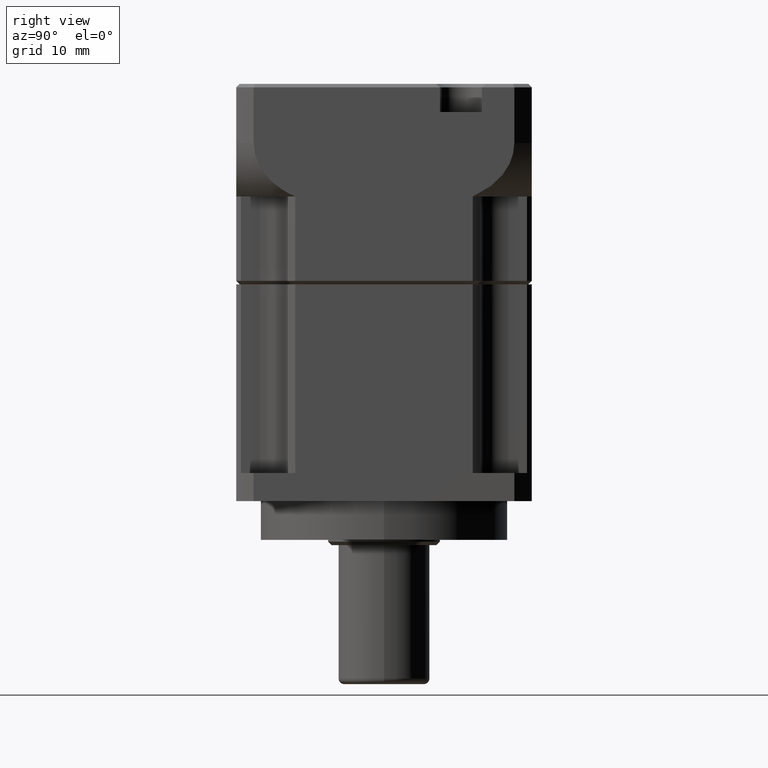
[diagram: clean part render]
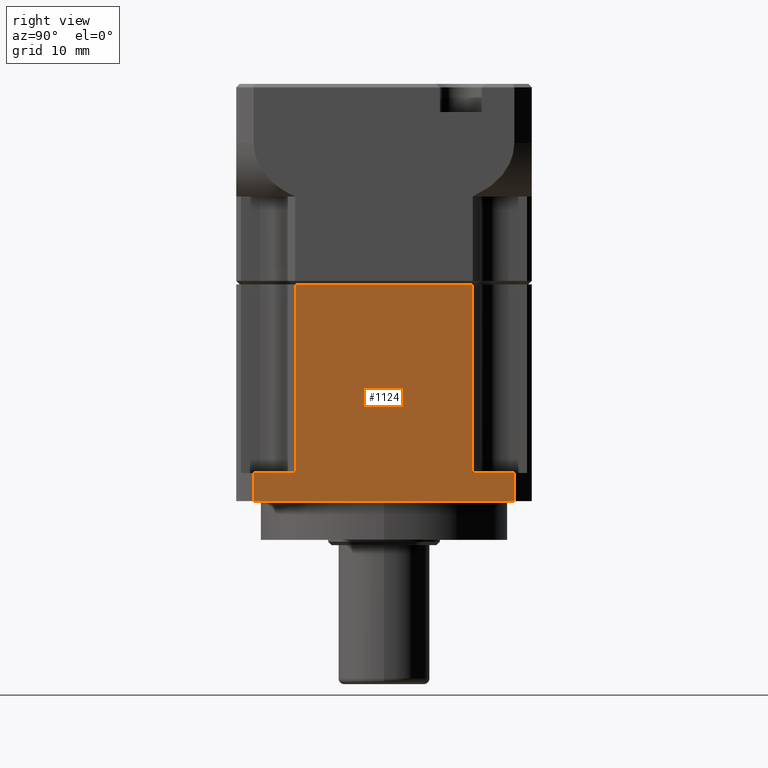
[diagram: same view with one face highlighted and labeled with its STEP entity id]
A machine part, right view. The second image highlights one B-rep face of the part: STEP entity #1124.
In plain terms, the highlighted planar face has unit normal (-1, 0, 0).
Its self-contained STEP definition (entity closure, byte-faithful):
#300 = LINE ( 'NONE', #3837, #6792 ) ;
#321 = LINE ( 'NONE', #9435, #9288 ) ;
#682 = ORIENTED_EDGE ( 'NONE', *, *, #2529, .F. ) ;
#796 = VERTEX_POINT ( 'NONE', #5156 ) ;
#877 = FACE_OUTER_BOUND ( 'NONE', #3401, .T. ) ;
#1052 = VERTEX_POINT ( 'NONE', #6291 ) ;
#1061 = VECTOR ( 'NONE', #6078, 1000.000000000000000 ) ;
#1124 = ADVANCED_FACE ( 'NONE', ( #877 ), #4830, .F. ) ;
#1273 = CARTESIAN_POINT ( 'NONE',  ( 3674.603875742843700, 1403.718703088253700, 26.80000000000000100 ) ) ;
#1291 = VECTOR ( 'NONE', #11154, 1000.000000000000000 ) ;
#1407 = CARTESIAN_POINT ( 'NONE',  ( 3674.603875950605900, 1397.817873297659800, 0.0000000000000000000 ) ) ;
#1451 = EDGE_CURVE ( 'NONE', #796, #2137, #5900, .T. ) ;
#1497 = DIRECTION ( 'NONE',  ( -0.0000000000000000000, -0.0000000000000000000, 1.000000000000000000 ) ) ;
#2137 = VERTEX_POINT ( 'NONE', #9143 ) ;
#2278 = ORIENTED_EDGE ( 'NONE', *, *, #7487, .F. ) ;
#2296 = EDGE_CURVE ( 'NONE', #9096, #2909, #5667, .T. ) ;
#2373 = VECTOR ( 'NONE', #1497, 1000.000000000000000 ) ;
#2529 = EDGE_CURVE ( 'NONE', #2909, #5162, #7160, .T. ) ;
#2909 = VERTEX_POINT ( 'NONE', #9462 ) ;
#3187 = CARTESIAN_POINT ( 'NONE',  ( 3674.603875742843700, 1428.957562478882000, 26.80000000000000100 ) ) ;
#3401 = EDGE_LOOP ( 'NONE', ( #7224, #11075, #7171, #2278, #6491, #10825, #682, #6089 ) ) ;
#3551 = CARTESIAN_POINT ( 'NONE',  ( 3674.603875742843700, 1428.957562478882000, 26.80000000000000100 ) ) ;
#3837 = CARTESIAN_POINT ( 'NONE',  ( 3674.603875950605900, 1434.858391652564300, 0.0000000000000000000 ) ) ;
#4250 = CARTESIAN_POINT ( 'NONE',  ( 3674.603875950605900, 1397.817873297659800, -4.000000000000000000 ) ) ;
#4255 = LINE ( 'NONE', #5057, #2373 ) ;
#4312 = LINE ( 'NONE', #1273, #6738 ) ;
#4767 = CARTESIAN_POINT ( 'NONE',  ( 3674.603875950605900, 1428.957562133144600, 0.0000000000000000000 ) ) ;
#4820 = DIRECTION ( 'NONE',  ( 0.0000000000000000000, -1.000000000000000000, 0.0000000000000000000 ) ) ;
#4830 = PLANE ( 'NONE',  #5029 ) ;
#5029 = AXIS2_PLACEMENT_3D ( 'NONE', #3187, #5728, #9925 ) ;
#5057 = CARTESIAN_POINT ( 'NONE',  ( 3674.603875950605900, 1397.817873297659800, -4.000000000000000000 ) ) ;
#5156 = CARTESIAN_POINT ( 'NONE',  ( 3674.603875950605900, 1434.858391652564300, -4.000000000000000000 ) ) ;
#5162 = VERTEX_POINT ( 'NONE', #4767 ) ;
#5191 = EDGE_CURVE ( 'NONE', #9096, #1052, #4312, .T. ) ;
#5667 = LINE ( 'NONE', #9439, #1061 ) ;
#5728 = DIRECTION ( 'NONE',  ( -1.000000000000000000, 0.0000000000000000000, 0.0000000000000000000 ) ) ;
#5883 = EDGE_CURVE ( 'NONE', #7065, #9155, #4255, .T. ) ;
#5900 = LINE ( 'NONE', #9433, #1291 ) ;
#6078 = DIRECTION ( 'NONE',  ( -0.0000000000000000000, 1.000000000000000000, -0.0000000000000000000 ) ) ;
#6089 = ORIENTED_EDGE ( 'NONE', *, *, #2296, .F. ) ;
#6174 = DIRECTION ( 'NONE',  ( -0.0000000000000000000, -0.0000000000000000000, -1.000000000000000000 ) ) ;
#6291 = CARTESIAN_POINT ( 'NONE',  ( 3674.603875950605900, 1403.718703433990600, 0.0000000000000000000 ) ) ;
#6491 = ORIENTED_EDGE ( 'NONE', *, *, #1451, .T. ) ;
#6664 = DIRECTION ( 'NONE',  ( 0.0000000000000000000, -1.000000000000000000, 0.0000000000000000000 ) ) ;
#6738 = VECTOR ( 'NONE', #9077, 1000.000000000000000 ) ;
#6792 = VECTOR ( 'NONE', #4820, 1000.000000000000000 ) ;
#7065 = VERTEX_POINT ( 'NONE', #4250 ) ;
#7160 = LINE ( 'NONE', #3551, #10687 ) ;
#7171 = ORIENTED_EDGE ( 'NONE', *, *, #5883, .F. ) ;
#7224 = ORIENTED_EDGE ( 'NONE', *, *, #5191, .T. ) ;
#7323 = CARTESIAN_POINT ( 'NONE',  ( 3674.603875950605900, 1434.858391652564300, -4.000000000000000000 ) ) ;
#7371 = EDGE_CURVE ( 'NONE', #1052, #9155, #300, .T. ) ;
#7435 = CARTESIAN_POINT ( 'NONE',  ( 3674.603875742843700, 1403.718703088253700, 26.80000000000000100 ) ) ;
#7487 = EDGE_CURVE ( 'NONE', #796, #7065, #8868, .T. ) ;
#8590 = VECTOR ( 'NONE', #10850, 1000.000000000000000 ) ;
#8612 = EDGE_CURVE ( 'NONE', #2137, #5162, #321, .T. ) ;
#8868 = LINE ( 'NONE', #7323, #8590 ) ;
#9077 = DIRECTION ( 'NONE',  ( -0.0000000000000000000, -0.0000000000000000000, -1.000000000000000000 ) ) ;
#9096 = VERTEX_POINT ( 'NONE', #7435 ) ;
#9143 = CARTESIAN_POINT ( 'NONE',  ( 3674.603875950605900, 1434.858391652564300, 0.0000000000000000000 ) ) ;
#9155 = VERTEX_POINT ( 'NONE', #1407 ) ;
#9288 = VECTOR ( 'NONE', #6664, 1000.000000000000000 ) ;
#9433 = CARTESIAN_POINT ( 'NONE',  ( 3674.603875950605900, 1434.858391652564300, -4.000000000000000000 ) ) ;
#9435 = CARTESIAN_POINT ( 'NONE',  ( 3674.603875950605900, 1434.858391652564300, 0.0000000000000000000 ) ) ;
#9439 = CARTESIAN_POINT ( 'NONE',  ( 3674.603875742843700, 1428.957562478882000, 26.80000000000000100 ) ) ;
#9462 = CARTESIAN_POINT ( 'NONE',  ( 3674.603875742843700, 1428.957562478882000, 26.80000000000000100 ) ) ;
#9925 = DIRECTION ( 'NONE',  ( 0.0000000000000000000, 0.0000000000000000000, 1.000000000000000000 ) ) ;
#10687 = VECTOR ( 'NONE', #6174, 1000.000000000000000 ) ;
#10825 = ORIENTED_EDGE ( 'NONE', *, *, #8612, .T. ) ;
#10850 = DIRECTION ( 'NONE',  ( 0.0000000000000000000, -1.000000000000000000, 0.0000000000000000000 ) ) ;
#11075 = ORIENTED_EDGE ( 'NONE', *, *, #7371, .T. ) ;
#11154 = DIRECTION ( 'NONE',  ( -0.0000000000000000000, -0.0000000000000000000, 1.000000000000000000 ) ) ;